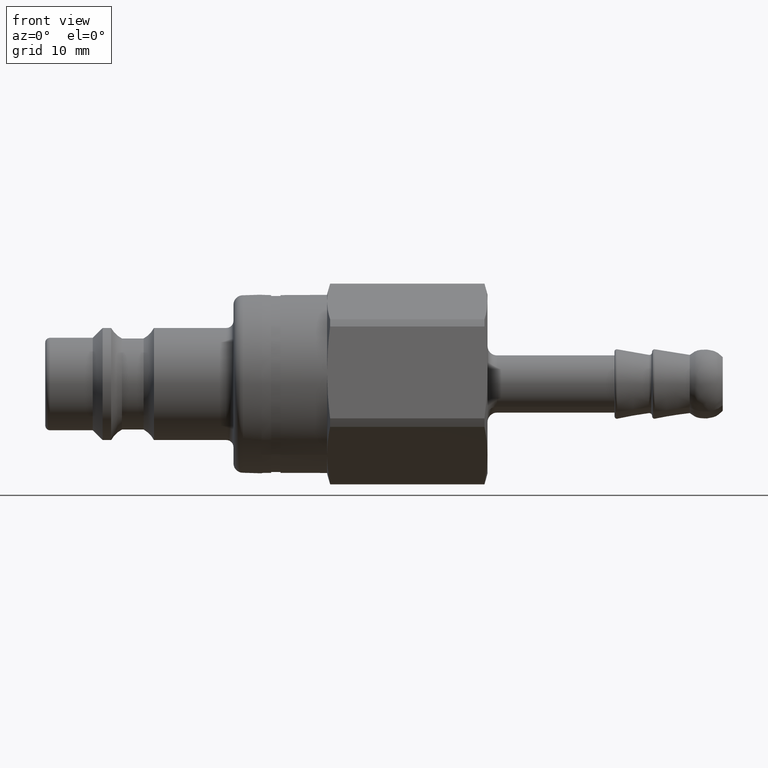
[diagram: clean part render]
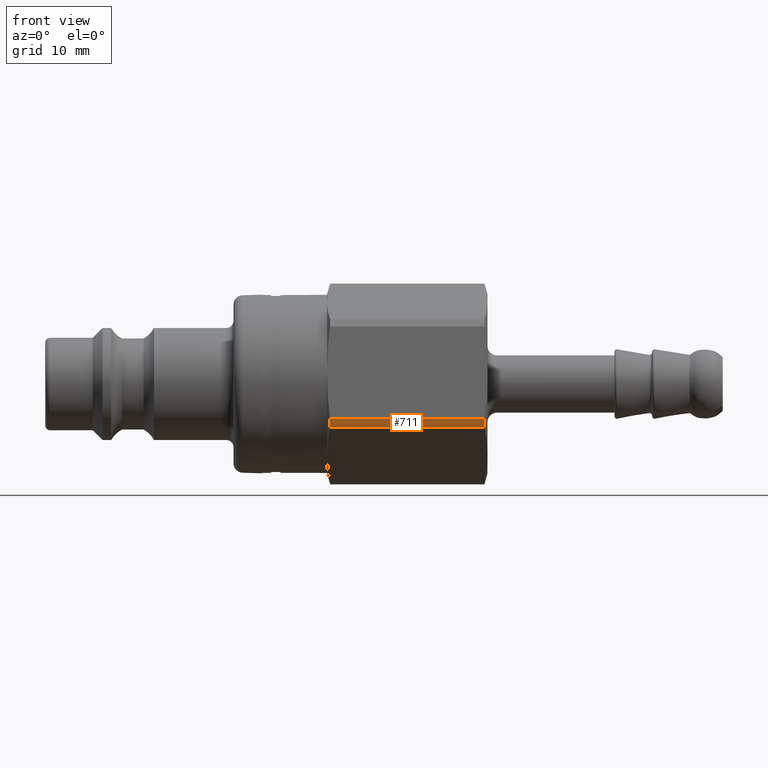
[diagram: same view with one face highlighted and labeled with its STEP entity id]
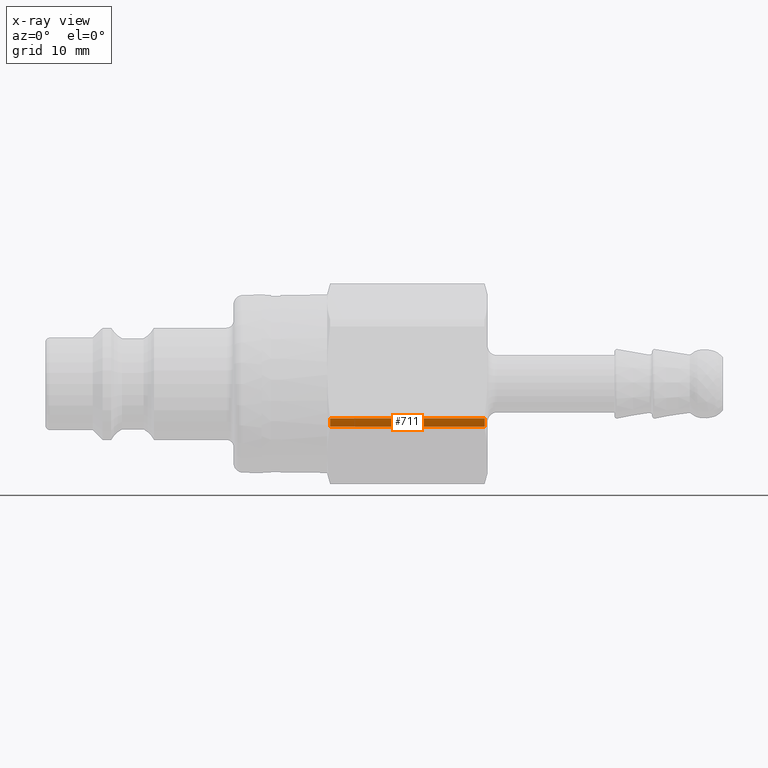
[diagram: x-ray of the same camera — body ghosted, the highlighted face saturated]
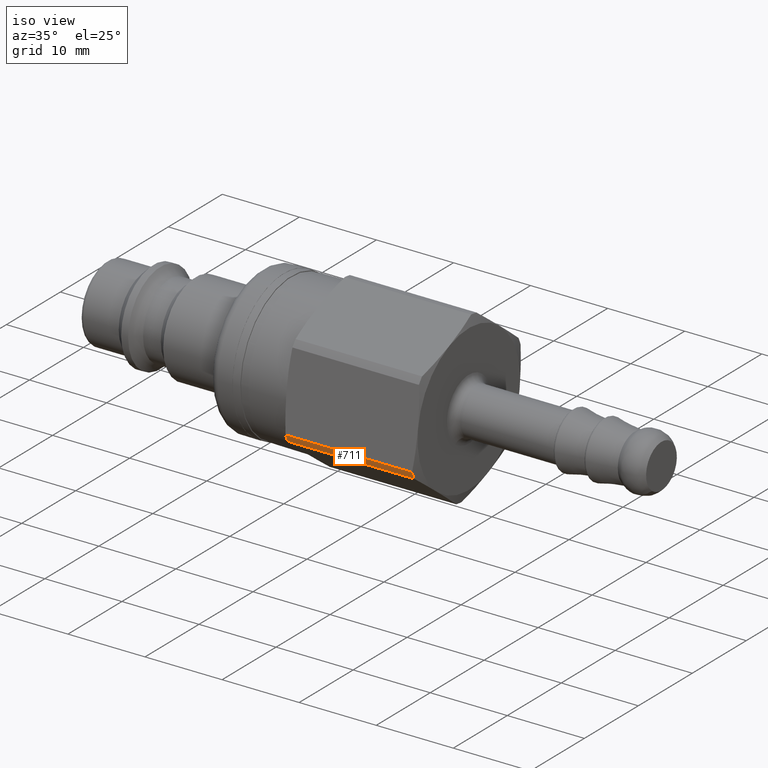
[diagram: same view with one face highlighted and labeled with its STEP entity id]
A machine part, front view. The second image highlights one B-rep face of the part: STEP entity #711.
The next image is the same camera in x-ray: the body ghosted, the highlighted face saturated — about 0% of this face is hidden behind the body in this view.
A second angle (iso view) of the same face is appended — the face is thin or edge-on in the first view.
In plain terms, the highlighted cylindrical surface (partial cylindrical patch) has radius 10.7 mm, axis along (-1, 0, 0).
Its self-contained STEP definition (entity closure, byte-faithful):
#449=CARTESIAN_POINT('',(30.271539030917332,-10.054917514733464,-3.659048205736874));
#450=VERTEX_POINT('',#449);
#464=CARTESIAN_POINT('',(46.678460969082643,-10.054917514733464,-3.659048205736874));
#465=VERTEX_POINT('',#464);
#466=CARTESIAN_POINT('',(46.678460969082643,-10.054917514733464,-3.659048205736874));
#467=DIRECTION('',(-1.0,0.0,0.0));
#468=VECTOR('',#467,16.406921938165315);
#469=LINE('',#466,#468);
#470=EDGE_CURVE('',#465,#450,#469,.T.);
#503=CARTESIAN_POINT('',(30.271539030917332,-9.681211816630128,-4.556768346267033));
#504=VERTEX_POINT('',#503);
#518=CARTESIAN_POINT('',(30.271539030917332,0.0,0.0));
#519=DIRECTION('',(-1.0,0.0,0.0));
#520=DIRECTION('',(0.0,-0.607360098639835,-0.794426655255355));
#521=AXIS2_PLACEMENT_3D('',#518,#519,#520);
#522=CIRCLE('',#521,10.700000000000001);
#523=EDGE_CURVE('',#504,#450,#522,.T.);
#687=CARTESIAN_POINT('',(38.47499999999998,0.0,0.0));
#688=DIRECTION('',(-1.0,0.0,0.0));
#689=DIRECTION('',(0.0,-0.607360098639835,-0.794426655255355));
#690=AXIS2_PLACEMENT_3D('',#687,#688,#689);
#691=CYLINDRICAL_SURFACE('',#690,10.700000000000001);
#692=ORIENTED_EDGE('',*,*,#470,.T.);
#693=ORIENTED_EDGE('',*,*,#523,.F.);
#694=CARTESIAN_POINT('',(46.678460969082643,-9.681211816630128,-4.556768346267033));
#695=VERTEX_POINT('',#694);
#696=CARTESIAN_POINT('',(30.271539030917328,-9.681211816630128,-4.556768346267033));
#697=DIRECTION('',(1.0,0.0,0.0));
#698=VECTOR('',#697,16.406921938165315);
#699=LINE('',#696,#698);
#700=EDGE_CURVE('',#504,#695,#699,.T.);
#701=ORIENTED_EDGE('',*,*,#700,.T.);
#702=CARTESIAN_POINT('',(46.678460969082636,0.0,0.0));
#703=DIRECTION('',(-1.0,0.0,0.0));
#704=DIRECTION('',(0.0,-0.607360098639835,-0.794426655255355));
#705=AXIS2_PLACEMENT_3D('',#702,#703,#704);
#706=CIRCLE('',#705,10.700000000000001);
#707=EDGE_CURVE('',#695,#465,#706,.T.);
#708=ORIENTED_EDGE('',*,*,#707,.T.);
#709=EDGE_LOOP('',(#692,#693,#701,#708));
#710=FACE_OUTER_BOUND('',#709,.T.);
#711=ADVANCED_FACE('',(#710),#691,.T.);